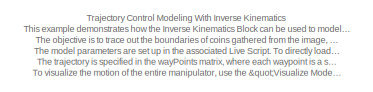
[diagram: root canvas - part 1/4, top left region]
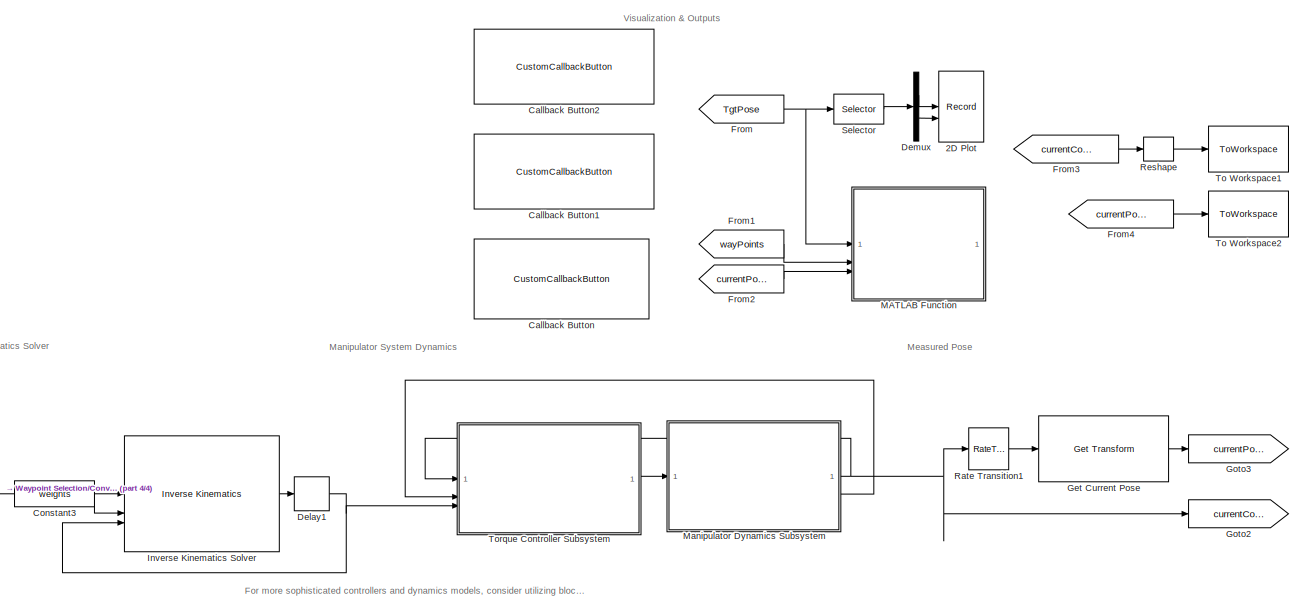
[diagram: root canvas - part 2/4, center side, full height]
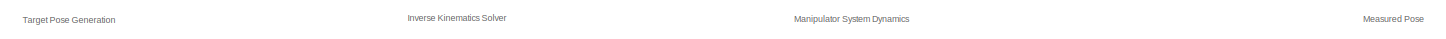
[diagram: root canvas - part 3/4, full width, middle band]
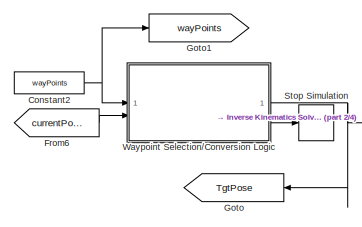
[diagram: root canvas - part 4/4, bottom left region]
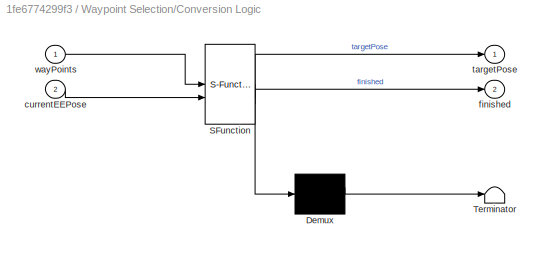
MODEL slx_1fe6774299f3
KIND model
CONFIG AbsTol = auto
CONFIG EnableMultiTasking = off
CONFIG FixedStep = Ts
CONFIG MaxStep = auto
CONFIG MinStep = auto
CONFIG PostLoadFcn = sawyer = importrobot('sawyer.urdf');\nsawyer.DataFormat = 'column';\n\nI = imread('coins.png');\nimageOrigin = [0.4,0.2,0.08];\nscale = .0015;\n
CONFIG RelTol = 1e-3
CONFIG SampleTimeConstraint = Unconstrained
CONFIG SolverName = FixedStepAuto
CONFIG StartTime = 0.0
CONFIG StopTime = 40
WORKSPACE source: mxarray member
WORKSPACE filterConst = 0.08
BLOCK [Record] 2D Plot
  CompatibilityTag = XY
  FileSettingsInternal = {"entries":[{"content":{"excelSettings":{"content":{},"type":"Streamout.ExcelSettings"}},"type":"Streamout.FileSettingStorage","uuid":""}],"packageUris":["http:\/\/schema.mathworks.com\/mf0\/streamout_blocks\/R2020a"],"version":"1.0"}
  Layout = [1 1]
  SignalsInternal = {"entries":[{"content":{"signals":[{"content":{"blockPath":[],"dimensions":[1,1],"domain":"","lineColor":"#a2142f","plots":[1],"port":1,"sid":[""],"signalID":11090,"signalName":"Demux:1"},"type":"RecordBlkView.Signal","uuid":""},{"content":{"blockPath":[],"dimensions":[1,1],"domain":"","lineColor":"#139fff","plots":[1],"port":2,"sid":[""],"signalID":11094,"signalName":"Demux:2"},"type":"RecordBlkV...<+168ch>
  VisualizationBindings = {"xyplotplugin":{"info":[{"series":[{"bindingParametersList":[{"parameter":"X-Axis","signalID":11090,"signalName":"Demux:1"},{"parameter":"Y-Axis","signalID":11094,"signalName":"Demux:2"}],"seriesID":4226}],"subplotID":1}]}}
  st = -1
BLOCK [CustomCallbackButton] Callback Button
  Configuration = {"components":[{"name":"BackgroundImageComponent","settings":{"image":{"size":[0,0],"src":"default","srcOrientation":"Right"},"position":[0,0,1,1]}},{"name":"ButtonStateComponent","settings":{"buttonType":"momentary","clickFcn":"f1 = figure(1);\nf1.Position = [158 253 953 335];\nI1 = imread('coins.png');\nI2 = imread('coinBoundaries.png');\n\nsubplot(1,2,1)\nimshow(I1, 'Border', 'tight')\ntitle('O...<+2188ch>
  CustomBackgroundColor = {"color":[0.9568627451,0.9568627451,0.9568627451],"show":true}
BLOCK [CustomCallbackButton] Callback Button1
  Configuration = {"components":[{"name":"BackgroundImageComponent","settings":{"image":{"size":[0,0],"src":"default","srcOrientation":"Right"},"position":[0,0,1,1]}},{"name":"ButtonStateComponent","settings":{"buttonType":"momentary","clickFcn":"if exist('jointData', 'var') \n    exampleHelperVisualizeIK(I, jointData, poseData, sawyer, imageOrigin, scale);\nelse\n    sim(gcs)\n    exampleHelperVisualizeIK(I, joint...<+2099ch>
  CustomBackgroundColor = {"color":[0.9568627451,0.9568627451,0.9568627451],"show":true}
BLOCK [CustomCallbackButton] Callback Button2
  Configuration = {"components":[{"name":"BackgroundImageComponent","settings":{"image":{"size":[0,0],"src":"default","srcOrientation":"Right"},"position":[0,0,1,1]}},{"name":"ButtonStateComponent","settings":{"buttonType":"momentary","clickFcn":"load defaultTrajControlSLXParams.mat","onValue":1,"position":[0,0,1,1],"pressDelay":"500","pressFcn":"","repeatInterval":"0","states":[{"horizontalAlignment":"center","ima...<+1939ch>
  CustomBackgroundColor = {"color":[0.9568627451,0.9568627451,0.9568627451],"show":true}
BLOCK [Constant] Constant2
  Value = wayPoints
BLOCK [Constant] Constant3
  Value = weights
BLOCK [Delay] Delay1
  DelayLength = 1
  InitialCondition = q0
  InputPortMap = u0
  NameLocation = top
BLOCK [Demux] Demux
  NameLocation = top
  Outputs = 2
BLOCK [From] From
  GotoTag = TgtPose
  NameLocation = top
BLOCK [From] From1
  GotoTag = wayPoints
  NameLocation = top
BLOCK [From] From2
  GotoTag = currentPose
  NameLocation = top
BLOCK [From] From3
  GotoTag = currentConfig
  NameLocation = top
BLOCK [From] From4
  GotoTag = currentPose
  NameLocation = top
BLOCK [From] From6
  GotoTag = currentPose
  NameLocation = top
BLOCK [Reference] Get Current Pose  REF=robotmaniplib/Get Transform
  SourceBlock = robotmaniplib/Get Transform
  SourceType = Get Transform
BLOCK [Goto] Goto
  GotoTag = TgtPose
BLOCK [Goto] Goto1
  GotoTag = wayPoints
BLOCK [Goto] Goto2
  GotoTag = currentConfig
BLOCK [Goto] Goto3
  GotoTag = currentPose
BLOCK [Reference] Inverse Kinematics Solver  REF=robotmaniplib/Inverse Kinematics
  SourceBlock = robotmaniplib/Inverse Kinematics
  SourceType = Inverse Kinematics
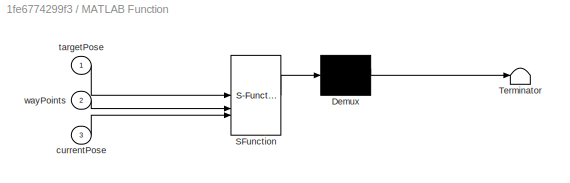
BLOCK [SubSystem] MATLAB Function
  ErrorFcn = Stateflow.Translate.translate
  NameLocation = top
  PermitHierarchicalResolution = ExplicitOnly
  SFBlockType = MATLAB Function
  SystemSampleTime = .1
  TreatAsAtomicUnit = on
BLOCK [Demux] MATLAB Function/ Demux 
  Outputs = 1
BLOCK [S-Function] MATLAB Function/ SFunction 
  EnableBusSupport = on
  FunctionName = sf_sfun
  PortCounts = [3 1]
  SFcnIsStateOwnerBlock = off
  SFunctionDeploymentMode = off
  Tag = Stateflow S-Function 2
BLOCK [Terminator] MATLAB Function/ Terminator 
BLOCK [Inport] MATLAB Function/currentPose
  Port = 3
BLOCK [Inport] MATLAB Function/targetPose
BLOCK [Inport] MATLAB Function/wayPoints
  Port = 2
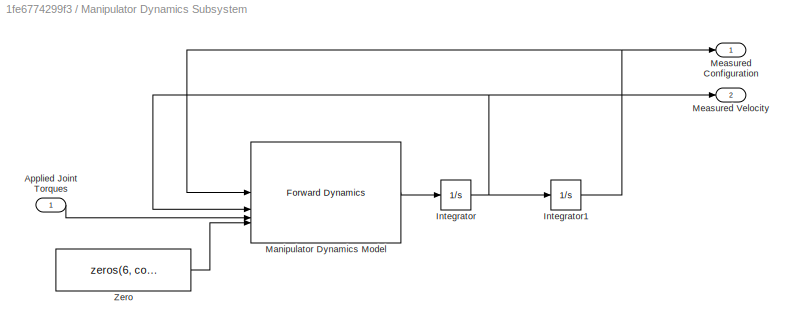
BLOCK [SubSystem] Manipulator Dynamics Subsystem
BLOCK [Inport] Manipulator Dynamics Subsystem/Applied Joint Torques
BLOCK [Integrator] Manipulator Dynamics Subsystem/Integrator
BLOCK [Integrator] Manipulator Dynamics Subsystem/Integrator1
  InitialCondition = q0
BLOCK [Reference] Manipulator Dynamics Subsystem/Manipulator Dynamics Model  REF=robotmaniplib/Forward Dynamics
  SourceBlock = robotmaniplib/Forward Dynamics
  SourceType = Forward Dynamics
BLOCK [Outport] Manipulator Dynamics Subsystem/Measured Configuration
  VectorParamsAs1DForOutWhenUnconnected = off
BLOCK [Outport] Manipulator Dynamics Subsystem/Measured Velocity
  Port = 2
  VectorParamsAs1DForOutWhenUnconnected = off
BLOCK [Constant] Manipulator Dynamics Subsystem/Zero
  OutDataTypeStr = Inherit: Inherit via back propagation
  Value = zeros(6, cobot.NumBodies)
BLOCK [RateTransition] Rate Transition1
  NameLocation = top
BLOCK [Reshape] Reshape
BLOCK [Selector] Selector
  IndexOptions = Index vector (dialog),Index vector (dialog)
  Indices = [1 2],4
  NameLocation = top
  NumberOfDimensions = 2
  OutputSizes = 1,1
BLOCK [Stop] Stop Simulation
BLOCK [ToWorkspace] To Workspace1
  FixptAsFi = on
  MaxDataPoints = inf
  SampleTime = -1
  Save2DSignal = 2-D array (concatenate along first dimension)
  VariableName = jointData
BLOCK [ToWorkspace] To Workspace2
  FixptAsFi = on
  MaxDataPoints = inf
  SampleTime = -1
  VariableName = poseData
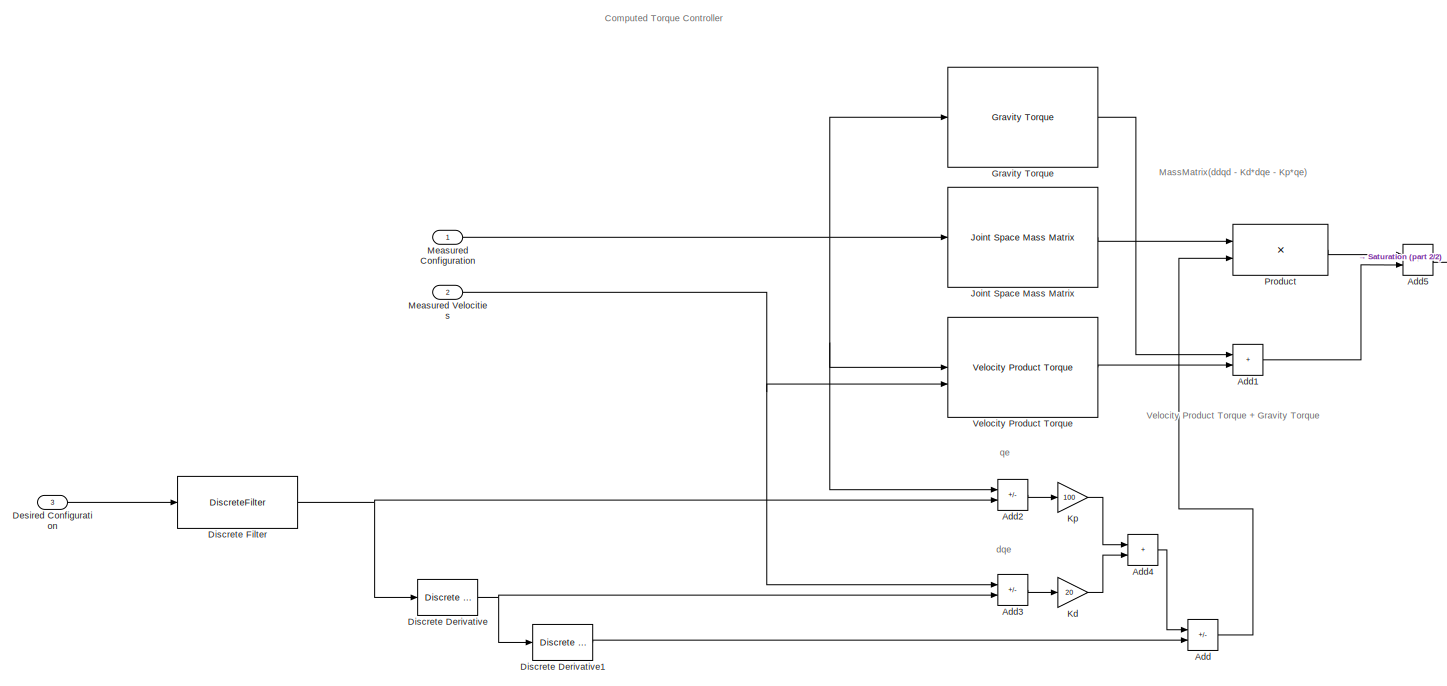
[diagram: Torque Controller Subsystem - part 1/2, most of the canvas]
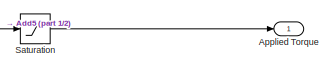
[diagram: Torque Controller Subsystem - part 2/2, middle right region]
BLOCK [SubSystem] Torque Controller Subsystem
BLOCK [Sum] Torque Controller Subsystem/Add
  IconShape = rectangular
  Inputs = -+
BLOCK [Sum] Torque Controller Subsystem/Add1
  IconShape = rectangular
BLOCK [Sum] Torque Controller Subsystem/Add2
  IconShape = rectangular
  Inputs = +-
BLOCK [Sum] Torque Controller Subsystem/Add3
  IconShape = rectangular
  Inputs = +-
BLOCK [Sum] Torque Controller Subsystem/Add4
  IconShape = rectangular
BLOCK [Sum] Torque Controller Subsystem/Add5
  IconShape = rectangular
BLOCK [Outport] Torque Controller Subsystem/Applied Torque
  VectorParamsAs1DForOutWhenUnconnected = off
BLOCK [Inport] Torque Controller Subsystem/Desired Configuration
  Port = 3
BLOCK [Reference] Torque Controller Subsystem/Discrete Derivative  REF=simulink/Discrete/Discrete Derivative
  SourceBlock = simulink/Discrete/Discrete Derivative
  SourceType = Discrete Derivative
BLOCK [Reference] Torque Controller Subsystem/Discrete Derivative1  REF=simulink/Discrete/Discrete Derivative
  SourceBlock = simulink/Discrete/Discrete Derivative
  SourceType = Discrete Derivative
BLOCK [DiscreteFilter] Torque Controller Subsystem/Discrete Filter
  Denominator = [1]
  InitialStates = repmat(q0',19,1)
  InputPortMap = u0
  Numerator = ones(1,20)*1/20
BLOCK [Reference] Torque Controller Subsystem/Gravity Torque  REF=robotmaniplib/Gravity Torque
  SourceBlock = robotmaniplib/Gravity Torque
  SourceType = Gravity Torque
BLOCK [Reference] Torque Controller Subsystem/Joint Space Mass Matrix  REF=robotmaniplib/Joint Space Mass Matrix
  SourceBlock = robotmaniplib/Joint Space Mass Matrix
  SourceType = Joint Space Mass Matrix
BLOCK [Gain] Torque Controller Subsystem/Kd
  Gain = 20
BLOCK [Gain] Torque Controller Subsystem/Kp
  Gain = 100
BLOCK [Inport] Torque Controller Subsystem/Measured Configuration
  NameLocation = top
BLOCK [Inport] Torque Controller Subsystem/Measured Velocities
  Port = 2
BLOCK [Product] Torque Controller Subsystem/Product
  Multiplication = Matrix(*)
BLOCK [Saturate] Torque Controller Subsystem/Saturation
  LowerLimit = -100
  UpperLimit = 100
BLOCK [Reference] Torque Controller Subsystem/Velocity Product Torque  REF=robotmaniplib/Velocity Product Torque
  SourceBlock = robotmaniplib/Velocity Product Torque
  SourceType = Velocity Product Torque
BLOCK [SubSystem] Waypoint Selection//Conversion Logic
  ErrorFcn = Stateflow.Translate.translate
  PermitHierarchicalResolution = ExplicitOnly
  SFBlockType = Chart
  TreatAsAtomicUnit = on
BLOCK [Demux] Waypoint Selection//Conversion Logic/ Demux 
  Outputs = 1
BLOCK [S-Function] Waypoint Selection//Conversion Logic/ SFunction 
  EnableBusSupport = on
  FunctionName = sf_sfun
  PortCounts = [2 3]
  SFcnIsStateOwnerBlock = off
  SFunctionDeploymentMode = off
  Tag = Stateflow S-Function 3
BLOCK [Terminator] Waypoint Selection//Conversion Logic/ Terminator 
BLOCK [Inport] Waypoint Selection//Conversion Logic/currentEEPose
  Port = 2
BLOCK [Outport] Waypoint Selection//Conversion Logic/finished
  Port = 2
  VectorParamsAs1DForOutWhenUnconnected = off
BLOCK [Outport] Waypoint Selection//Conversion Logic/targetPose
  VectorParamsAs1DForOutWhenUnconnected = off
BLOCK [Inport] Waypoint Selection//Conversion Logic/wayPoints
ANNOTATION (root): Trajectory Control Modeling With Inverse Kinematics This example demonstrates how the Inverse Kinematics Block can be used to model and simulate torque controllers for a robot manipulator. The objective is to trace out the boundaries of coins gathered from the image, "coins.png." These boundaries define a series of desired poses for the manipulator as a robot trajectory. To see the image before an...<+953ch>
ANNOTATION (root): For more sophisticated controllers and dynamics models, consider utilizing blocks from the Controls System Toolbox and the "smimport" tool from Simscape Multibody.
ANNOTATION (root): Inverse Kinematics Solver
ANNOTATION (root): Manipulator System Dynamics
ANNOTATION (root): Measured Pose
ANNOTATION (root): Target Pose Generation
ANNOTATION (root): Visualization & Outputs
ANNOTATION Torque Controller Subsystem: qe
ANNOTATION Torque Controller Subsystem: dqe
ANNOTATION Torque Controller Subsystem: MassMatrix(ddqd - Kd*dqe - Kp*qe)
ANNOTATION Torque Controller Subsystem: Velocity Product Torque + Gravity Torque
ANNOTATION Torque Controller Subsystem: Computed Torque Controller
NET Constant2:1 -> Goto1:1, Waypoint Selection//Conversion Logic:1
LINE Constant3:1 -> Inverse Kinematics Solver:2
NET Delay1:1 -> Inverse Kinematics Solver:3, Torque Controller Subsystem:3
LINE Demux:1 -> 2D Plot:1
LINE Demux:2 -> 2D Plot:2
LINE From1:1 -> MATLAB Function:2
LINE From2:1 -> MATLAB Function:3
LINE From3:1 -> Reshape:1
LINE From4:1 -> To Workspace2:1
LINE From6:1 -> Waypoint Selection//Conversion Logic:2
NET From:1 -> MATLAB Function:1, Selector:1
LINE Get Current Pose:1 -> Goto3:1
LINE Inverse Kinematics Solver:1 -> Delay1:1
LINE Manipulator Dynamics Subsystem/Applied Joint Torques:1 -> Manipulator Dynamics Subsystem/Manipulator Dynamics Model:3
NET Manipulator Dynamics Subsystem/Integrator1:1 -> Manipulator Dynamics Subsystem/Manipulator Dynamics Model:1, Manipulator Dynamics Subsystem/Measured Configuration:1
NET Manipulator Dynamics Subsystem/Integrator:1 -> Manipulator Dynamics Subsystem/Integrator1:1, Manipulator Dynamics Subsystem/Manipulator Dynamics Model:2, Manipulator Dynamics Subsystem/Measured Velocity:1
LINE Manipulator Dynamics Subsystem/Manipulator Dynamics Model:1 -> Manipulator Dynamics Subsystem/Integrator:1
LINE Manipulator Dynamics Subsystem/Zero:1 -> Manipulator Dynamics Subsystem/Manipulator Dynamics Model:4
NET Manipulator Dynamics Subsystem:1 -> Goto2:1, Rate Transition1:1, Torque Controller Subsystem:1
LINE Manipulator Dynamics Subsystem:2 -> Torque Controller Subsystem:2
LINE Rate Transition1:1 -> Get Current Pose:1
LINE Reshape:1 -> To Workspace1:1
LINE Selector:1 -> Demux:1
LINE Torque Controller Subsystem/Add1:1 -> Torque Controller Subsystem/Add5:2
LINE Torque Controller Subsystem/Add2:1 -> Torque Controller Subsystem/Kp:1
LINE Torque Controller Subsystem/Add3:1 -> Torque Controller Subsystem/Kd:1
LINE Torque Controller Subsystem/Add4:1 -> Torque Controller Subsystem/Add:1
LINE Torque Controller Subsystem/Add5:1 -> Torque Controller Subsystem/Saturation:1
LINE Torque Controller Subsystem/Add:1 -> Torque Controller Subsystem/Product:2
LINE Torque Controller Subsystem/Desired Configuration:1 -> Torque Controller Subsystem/Discrete Filter:1
LINE Torque Controller Subsystem/Discrete Derivative1:1 -> Torque Controller Subsystem/Add:2
NET Torque Controller Subsystem/Discrete Derivative:1 -> Torque Controller Subsystem/Add3:2, Torque Controller Subsystem/Discrete Derivative1:1
NET Torque Controller Subsystem/Discrete Filter:1 -> Torque Controller Subsystem/Add2:2, Torque Controller Subsystem/Discrete Derivative:1
LINE Torque Controller Subsystem/Gravity Torque:1 -> Torque Controller Subsystem/Add1:1
LINE Torque Controller Subsystem/Joint Space Mass Matrix:1 -> Torque Controller Subsystem/Product:1
LINE Torque Controller Subsystem/Kd:1 -> Torque Controller Subsystem/Add4:2
LINE Torque Controller Subsystem/Kp:1 -> Torque Controller Subsystem/Add4:1
NET Torque Controller Subsystem/Measured Configuration:1 -> Torque Controller Subsystem/Add2:1, Torque Controller Subsystem/Gravity Torque:1, Torque Controller Subsystem/Joint Space Mass Matrix:1, Torque Controller Subsystem/Velocity Product Torque:1
NET Torque Controller Subsystem/Measured Velocities:1 -> Torque Controller Subsystem/Add3:1, Torque Controller Subsystem/Velocity Product Torque:2
LINE Torque Controller Subsystem/Product:1 -> Torque Controller Subsystem/Add5:1
LINE Torque Controller Subsystem/Saturation:1 -> Torque Controller Subsystem/Applied Torque:1
LINE Torque Controller Subsystem/Velocity Product Torque:1 -> Torque Controller Subsystem/Add1:2
LINE Torque Controller Subsystem:1 -> Manipulator Dynamics Subsystem:1
NET Waypoint Selection//Conversion Logic:1 -> Goto:1, Inverse Kinematics Solver:1
LINE Waypoint Selection//Conversion Logic:2 -> Stop Simulation:1
note: NET lines group one-source signal fan-out (src -> all destinations, sorted); 1:1 wires keep LINE
CHART MATLAB Function states=1 transitions=1
  STATE_LABEL 'eML_blk_kernel()'
  STATE_LABEL "SCRIPT:\nfunction waypointTracking(targetPose, wayPoints, currentPose)\n%#codegen\n\npersistent f a\n\nif isempty(f)\n    f = figure;\n    title('Waypoint Tracking');\n    a = axes;\n    axis(a, [\t0.4,0.8, 0.2,0.635, 0.05,0.3]);\n    set(f, 'Visible', 'on');\nend\n\ntargetPoint = targetPose(1:3,end);\ncurrentPoint = currentPose(1:3,end);\n\nplot3(a,wayPoints(:,1), wayPoints(:,2), wayPoints(:,3), 'b.', 'MarkerSize'...<+188ch>"
CHART Waypoint Selection//Conversion Logic states=0 transitions=9
CHART  states=0 transitions=0
CHART  states=0 transitions=0
